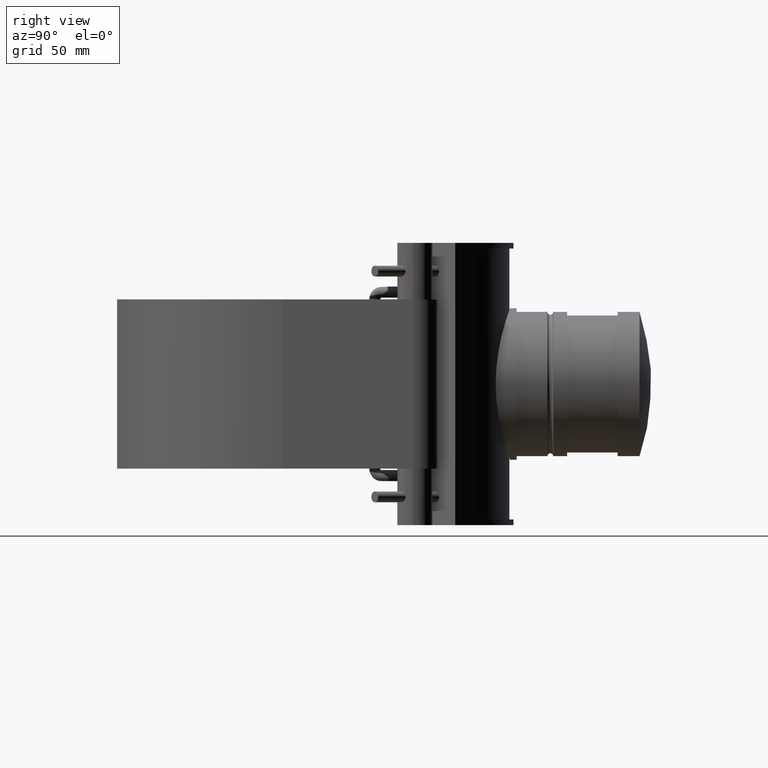
[diagram: clean part render]
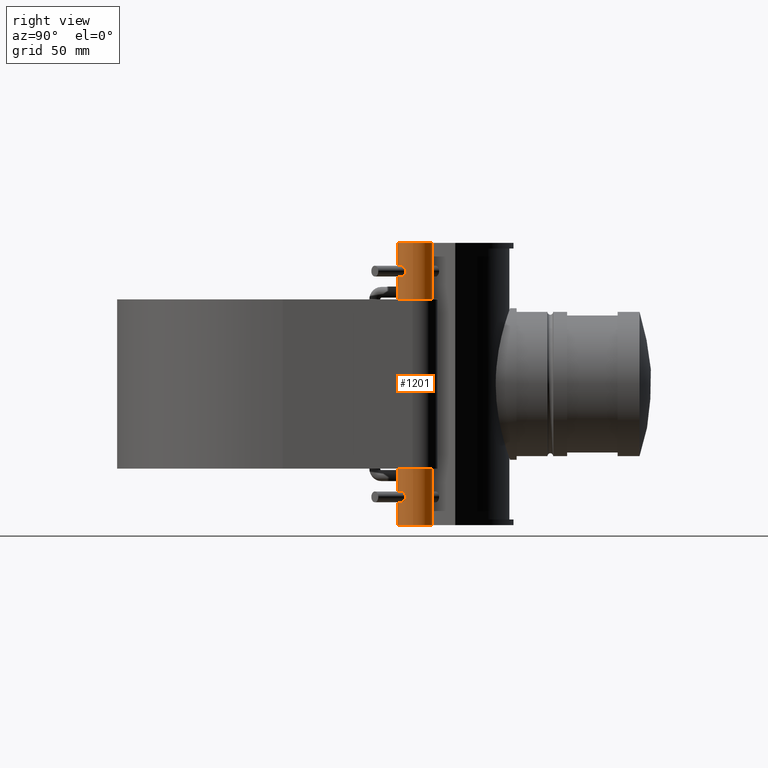
[diagram: same view with one face highlighted and labeled with its STEP entity id]
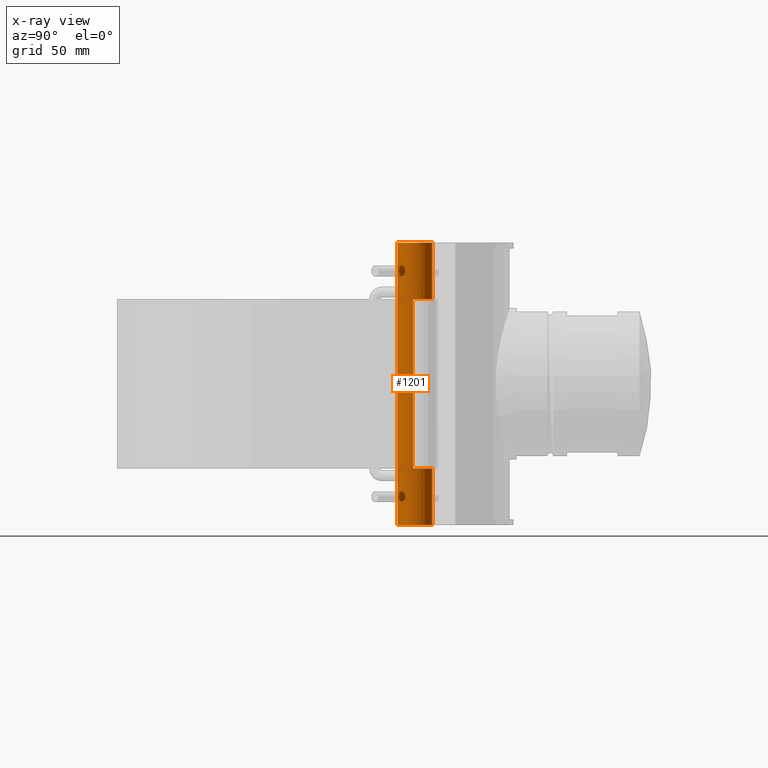
[diagram: x-ray of the same camera — body ghosted, the highlighted face saturated]
A machine part, right view. The second image highlights one B-rep face of the part: STEP entity #1201.
The next image is the same camera in x-ray: the body ghosted, the highlighted face saturated — about 0% of this face is hidden behind the body in this view.
In plain terms, the highlighted cylindrical surface (bore or boss wall) has radius 10.9038 mm, axis along (0, 0, 1).
Its self-contained STEP definition (entity closure, byte-faithful):
#96=LINE('',#2029,#199);
#101=LINE('',#2038,#204);
#199=VECTOR('',#1537,105.6);
#204=VECTOR('',#1544,105.6);
#288=FACE_BOUND('',#456,.T.);
#289=FACE_BOUND('',#457,.T.);
#290=FACE_BOUND('',#458,.T.);
#291=FACE_BOUND('',#459,.T.);
#292=FACE_BOUND('',#460,.T.);
#293=FACE_BOUND('',#461,.T.);
#303=B_SPLINE_CURVE_WITH_KNOTS('',3,(#1696,#1697,#1698,#1699,#1700,#1701,
#1702,#1703,#1704,#1705,#1706,#1707,#1708,#1709,#1710,#1711,#1712,#1713,
#1714,#1715,#1716,#1717,#1718,#1719,#1720,#1721,#1722,#1723,#1724,#1725,
#1726,#1727,#1728,#1729),.UNSPECIFIED.,.T.,.F.,(4,2,2,2,2,2,2,2,2,2,2,2,
2,2,2,2,4),(0.,0.128066673134918,0.256133346269836,0.384156535697469,0.512179725125103,
0.640202914552737,0.768226103980372,0.89629277711529,1.02435945025021,1.15242612338513,
1.28049279652004,1.40851598594768,1.53653917537531,1.66456236480295,1.79258555423058,
1.9206522273655,2.04871890050042),.UNSPECIFIED.);
#304=B_SPLINE_CURVE_WITH_KNOTS('',3,(#1734,#1735,#1736,#1737,#1738,#1739,
#1740,#1741,#1742,#1743,#1744,#1745,#1746,#1747,#1748,#1749,#1750,#1751,
#1752,#1753,#1754,#1755,#1756,#1757,#1758,#1759,#1760,#1761,#1762,#1763,
#1764,#1765,#1766,#1767),.UNSPECIFIED.,.T.,.F.,(4,2,2,2,2,2,2,2,2,2,2,2,
2,2,2,2,4),(0.,0.128066673134918,0.256133346269836,0.38415653569747,0.512179725125104,
0.640202914552738,0.768226103980373,0.896292777115291,1.02435945025021,
1.15242612338513,1.28049279652004,1.40851598594768,1.53653917537531,1.66456236480295,
1.79258555423058,1.9206522273655,2.04871890050042),.UNSPECIFIED.);
#305=B_SPLINE_CURVE_WITH_KNOTS('',3,(#1773,#1774,#1775,#1776,#1777,#1778,
#1779,#1780,#1781,#1782,#1783,#1784,#1785,#1786,#1787,#1788,#1789,#1790,
#1791,#1792,#1793,#1794,#1795,#1796,#1797,#1798,#1799,#1800,#1801,#1802,
#1803,#1804,#1805,#1806),.UNSPECIFIED.,.T.,.F.,(4,2,2,2,2,2,2,2,2,2,2,2,
2,2,2,2,4),(0.,0.128066673134918,0.256133346269836,0.38415653569747,0.512179725125105,
0.640202914552739,0.768226103980373,0.89629277711529,1.02435945025021,1.15242612338513,
1.28049279652004,1.40851598594768,1.53653917537531,1.66456236480295,1.79258555423058,
1.9206522273655,2.04871890050042),.UNSPECIFIED.);
#306=B_SPLINE_CURVE_WITH_KNOTS('',3,(#1811,#1812,#1813,#1814,#1815,#1816,
#1817,#1818,#1819,#1820,#1821,#1822,#1823,#1824,#1825,#1826,#1827,#1828,
#1829,#1830,#1831,#1832,#1833,#1834,#1835,#1836,#1837,#1838,#1839,#1840,
#1841,#1842,#1843,#1844),.UNSPECIFIED.,.T.,.F.,(4,2,2,2,2,2,2,2,2,2,2,2,
2,2,2,2,4),(0.,0.128066673134918,0.256133346269836,0.38415653569747,0.512179725125105,
0.640202914552739,0.768226103980373,0.89629277711529,1.02435945025021,1.15242612338513,
1.28049279652004,1.40851598594768,1.53653917537531,1.66456236480295,1.79258555423058,
1.9206522273655,2.04871890050042),.UNSPECIFIED.);
#367=FACE_OUTER_BOUND('',#455,.T.);
#455=EDGE_LOOP('',(#1086));
#456=EDGE_LOOP('',(#1087));
#457=EDGE_LOOP('',(#1088));
#458=EDGE_LOOP('',(#1089));
#459=EDGE_LOOP('',(#1090));
#460=EDGE_LOOP('',(#1091,#1092,#1093,#1094));
#461=EDGE_LOOP('',(#1095));
#509=CIRCLE('',#1286,10.9038461538461);
#516=CIRCLE('',#1294,10.9038461538461);
#521=CIRCLE('',#1316,10.9038461538461);
#522=CIRCLE('',#1318,10.9038461538461);
#533=VERTEX_POINT('',#1695);
#535=VERTEX_POINT('',#1733);
#537=VERTEX_POINT('',#1772);
#539=VERTEX_POINT('',#1810);
#596=VERTEX_POINT('',#2025);
#598=VERTEX_POINT('',#2028);
#600=VERTEX_POINT('',#2034);
#601=VERTEX_POINT('',#2036);
#628=VERTEX_POINT('',#2126);
#629=VERTEX_POINT('',#2129);
#641=EDGE_CURVE('',#533,#533,#303,.T.);
#643=EDGE_CURVE('',#535,#535,#304,.T.);
#645=EDGE_CURVE('',#537,#537,#305,.T.);
#647=EDGE_CURVE('',#539,#539,#306,.T.);
#739=EDGE_CURVE('',#598,#596,#96,.T.);
#744=EDGE_CURVE('',#601,#600,#101,.T.);
#757=EDGE_CURVE('',#596,#600,#509,.T.);
#770=EDGE_CURVE('',#601,#598,#516,.T.);
#787=EDGE_CURVE('',#628,#628,#521,.T.);
#788=EDGE_CURVE('',#629,#629,#522,.T.);
#1086=ORIENTED_EDGE('',*,*,#788,.F.);
#1087=ORIENTED_EDGE('',*,*,#643,.T.);
#1088=ORIENTED_EDGE('',*,*,#641,.T.);
#1089=ORIENTED_EDGE('',*,*,#647,.T.);
#1090=ORIENTED_EDGE('',*,*,#645,.T.);
#1091=ORIENTED_EDGE('',*,*,#757,.T.);
#1092=ORIENTED_EDGE('',*,*,#744,.F.);
#1093=ORIENTED_EDGE('',*,*,#770,.T.);
#1094=ORIENTED_EDGE('',*,*,#739,.T.);
#1095=ORIENTED_EDGE('',*,*,#787,.F.);
#1135=CYLINDRICAL_SURFACE('',#1317,10.9038461538461);
#1201=ADVANCED_FACE('',(#367,#288,#289,#290,#291,#292,#293),#1135,.T.);
#1286=AXIS2_PLACEMENT_3D('',#2064,#1565,#1566);
#1294=AXIS2_PLACEMENT_3D('',#2090,#1587,#1588);
#1316=AXIS2_PLACEMENT_3D('',#2127,#1643,#1644);
#1317=AXIS2_PLACEMENT_3D('',#2128,#1645,#1646);
#1318=AXIS2_PLACEMENT_3D('',#2130,#1647,#1648);
#1537=DIRECTION('',(0.,0.,-1.));
#1544=DIRECTION('',(0.,0.,-1.));
#1565=DIRECTION('center_axis',(0.,0.,-1.));
#1566=DIRECTION('ref_axis',(1.,0.,0.));
#1587=DIRECTION('center_axis',(0.,0.,1.));
#1588=DIRECTION('ref_axis',(1.,0.,0.));
#1643=DIRECTION('center_axis',(0.,0.,-1.));
#1644=DIRECTION('ref_axis',(1.,0.,0.));
#1645=DIRECTION('center_axis',(0.,0.,1.));
#1646=DIRECTION('ref_axis',(1.,0.,0.));
#1647=DIRECTION('center_axis',(0.,0.,1.));
#1648=DIRECTION('ref_axis',(1.,0.,0.));
#1695=CARTESIAN_POINT('',(105.647777550209,80.1120455583437,-70.4));
#1696=CARTESIAN_POINT('Ctrl Pts',(105.647777550209,80.1120455583437,-70.4));
#1697=CARTESIAN_POINT('Ctrl Pts',(105.647777550209,80.1120455583437,-69.9731110895503));
#1698=CARTESIAN_POINT('Ctrl Pts',(105.563259417524,80.0791483434038,-69.5198532719695));
#1699=CARTESIAN_POINT('Ctrl Pts',(105.232583122042,79.9361036115303,-68.6892539677133));
#1700=CARTESIAN_POINT('Ctrl Pts',(104.987633948385,79.8247253703594,-68.3116440323042));
#1701=CARTESIAN_POINT('Ctrl Pts',(104.444996555548,79.5439588329499,-67.715486421431));
#1702=CARTESIAN_POINT('Ctrl Pts',(104.110324578548,79.3552849434751,-67.4561736514262));
#1703=CARTESIAN_POINT('Ctrl Pts',(103.410040225209,78.897435587302,-67.1108555934634));
#1704=CARTESIAN_POINT('Ctrl Pts',(103.045089284384,78.6271364878335,-67.025));
#1705=CARTESIAN_POINT('Ctrl Pts',(102.391279598708,78.0785250217226,-67.025));
#1706=CARTESIAN_POINT('Ctrl Pts',(102.061713884107,77.7660554517774,-67.1108555934634));
#1707=CARTESIAN_POINT('Ctrl Pts',(101.48921718663,77.1559146976408,-67.4561736514262));
#1708=CARTESIAN_POINT('Ctrl Pts',(101.245294498562,76.8590900170563,-67.7154864214309));
#1709=CARTESIAN_POINT('Ctrl Pts',(100.874565441335,76.3734511030864,-68.3116440323042));
#1710=CARTESIAN_POINT('Ctrl Pts',(100.722344308286,76.1515638863864,-68.6892539677133));
#1711=CARTESIAN_POINT('Ctrl Pts',(100.524051411202,75.8507507638729,-69.5198532719695));
#1712=CARTESIAN_POINT('Ctrl Pts',(100.476977559156,75.7732291929595,-69.9731110895503));
#1713=CARTESIAN_POINT('Ctrl Pts',(100.476977559156,75.7732291929595,-70.8268889104497));
#1714=CARTESIAN_POINT('Ctrl Pts',(100.524051411202,75.8507507638729,-71.2801467280305));
#1715=CARTESIAN_POINT('Ctrl Pts',(100.722344308286,76.1515638863864,-72.1107460322867));
#1716=CARTESIAN_POINT('Ctrl Pts',(100.874565441335,76.3734511030864,-72.4883559676958));
#1717=CARTESIAN_POINT('Ctrl Pts',(101.245294498562,76.8590900170563,-73.0845135785691));
#1718=CARTESIAN_POINT('Ctrl Pts',(101.48921718663,77.1559146976408,-73.3438263485738));
#1719=CARTESIAN_POINT('Ctrl Pts',(102.061713884107,77.7660554517774,-73.6891444065366));
#1720=CARTESIAN_POINT('Ctrl Pts',(102.391279598708,78.0785250217226,-73.775));
#1721=CARTESIAN_POINT('Ctrl Pts',(103.045089284384,78.6271364878335,-73.775));
#1722=CARTESIAN_POINT('Ctrl Pts',(103.410040225209,78.897435587302,-73.6891444065366));
#1723=CARTESIAN_POINT('Ctrl Pts',(104.110324578548,79.3552849434751,-73.3438263485738));
#1724=CARTESIAN_POINT('Ctrl Pts',(104.444996555548,79.5439588329499,-73.0845135785691));
#1725=CARTESIAN_POINT('Ctrl Pts',(104.987633948385,79.8247253703594,-72.4883559676958));
#1726=CARTESIAN_POINT('Ctrl Pts',(105.232583122042,79.9361036115303,-72.1107460322867));
#1727=CARTESIAN_POINT('Ctrl Pts',(105.563259417524,80.0791483434038,-71.2801467280306));
#1728=CARTESIAN_POINT('Ctrl Pts',(105.647777550209,80.1120455583437,-70.8268889104497));
#1729=CARTESIAN_POINT('Ctrl Pts',(105.647777550209,80.1120455583437,-70.4));
#1733=CARTESIAN_POINT('',(118.977105735177,64.2267708070405,-70.4));
#1734=CARTESIAN_POINT('Ctrl Pts',(118.977105735177,64.2267708070405,-70.4));
#1735=CARTESIAN_POINT('Ctrl Pts',(118.977105735177,64.2267708070405,-70.8268889104497));
#1736=CARTESIAN_POINT('Ctrl Pts',(118.930031883132,64.1492492361271,-71.2801467280306));
#1737=CARTESIAN_POINT('Ctrl Pts',(118.731738986047,63.8484361136136,-72.1107460322867));
#1738=CARTESIAN_POINT('Ctrl Pts',(118.579517852998,63.6265488969136,-72.4883559676958));
#1739=CARTESIAN_POINT('Ctrl Pts',(118.208788795771,63.1409099829437,-73.0845135785691));
#1740=CARTESIAN_POINT('Ctrl Pts',(117.964866107703,62.8440853023592,-73.3438263485738));
#1741=CARTESIAN_POINT('Ctrl Pts',(117.392369410226,62.2339445482227,-73.6891444065366));
#1742=CARTESIAN_POINT('Ctrl Pts',(117.062803695625,61.9214749782774,-73.775));
#1743=CARTESIAN_POINT('Ctrl Pts',(116.408994009949,61.3728635121665,-73.775));
#1744=CARTESIAN_POINT('Ctrl Pts',(116.044043069125,61.1025644126979,-73.6891444065366));
#1745=CARTESIAN_POINT('Ctrl Pts',(115.343758715785,60.644715056525,-73.3438263485738));
#1746=CARTESIAN_POINT('Ctrl Pts',(115.009086738786,60.4560411670501,-73.0845135785691));
#1747=CARTESIAN_POINT('Ctrl Pts',(114.466449345948,60.1752746296406,-72.4883559676958));
#1748=CARTESIAN_POINT('Ctrl Pts',(114.221500172291,60.0638963884697,-72.1107460322867));
#1749=CARTESIAN_POINT('Ctrl Pts',(113.890823876809,59.9208516565962,-71.2801467280305));
#1750=CARTESIAN_POINT('Ctrl Pts',(113.806305744124,59.8879544416563,-70.8268889104497));
#1751=CARTESIAN_POINT('Ctrl Pts',(113.806305744124,59.8879544416563,-69.9731110895503));
#1752=CARTESIAN_POINT('Ctrl Pts',(113.890823876809,59.9208516565962,-69.5198532719695));
#1753=CARTESIAN_POINT('Ctrl Pts',(114.221500172291,60.0638963884697,-68.6892539677133));
#1754=CARTESIAN_POINT('Ctrl Pts',(114.466449345948,60.1752746296406,-68.3116440323042));
#1755=CARTESIAN_POINT('Ctrl Pts',(115.009086738786,60.4560411670501,-67.7154864214309));
#1756=CARTESIAN_POINT('Ctrl Pts',(115.343758715785,60.644715056525,-67.4561736514262));
#1757=CARTESIAN_POINT('Ctrl Pts',(116.044043069125,61.1025644126979,-67.1108555934634));
#1758=CARTESIAN_POINT('Ctrl Pts',(116.408994009949,61.3728635121665,-67.025));
#1759=CARTESIAN_POINT('Ctrl Pts',(117.062803695625,61.9214749782774,-67.025));
#1760=CARTESIAN_POINT('Ctrl Pts',(117.392369410226,62.2339445482227,-67.1108555934634));
#1761=CARTESIAN_POINT('Ctrl Pts',(117.964866107703,62.8440853023592,-67.4561736514262));
#1762=CARTESIAN_POINT('Ctrl Pts',(118.208788795771,63.1409099829437,-67.7154864214309));
#1763=CARTESIAN_POINT('Ctrl Pts',(118.579517852998,63.6265488969136,-68.3116440323042));
#1764=CARTESIAN_POINT('Ctrl Pts',(118.731738986047,63.8484361136136,-68.6892539677133));
#1765=CARTESIAN_POINT('Ctrl Pts',(118.930031883132,64.1492492361271,-69.5198532719695));
#1766=CARTESIAN_POINT('Ctrl Pts',(118.977105735177,64.2267708070405,-69.9731110895503));
#1767=CARTESIAN_POINT('Ctrl Pts',(118.977105735177,64.2267708070405,-70.4));
#1772=CARTESIAN_POINT('',(113.806305744124,59.8879544416563,70.4));
#1773=CARTESIAN_POINT('Ctrl Pts',(113.806305744124,59.8879544416563,70.4));
#1774=CARTESIAN_POINT('Ctrl Pts',(113.806305744124,59.8879544416563,70.8268889104497));
#1775=CARTESIAN_POINT('Ctrl Pts',(113.890823876809,59.9208516565962,71.2801467280305));
#1776=CARTESIAN_POINT('Ctrl Pts',(114.221500172291,60.0638963884697,72.1107460322867));
#1777=CARTESIAN_POINT('Ctrl Pts',(114.466449345948,60.1752746296406,72.4883559676958));
#1778=CARTESIAN_POINT('Ctrl Pts',(115.009086738786,60.4560411670501,73.0845135785691));
#1779=CARTESIAN_POINT('Ctrl Pts',(115.343758715785,60.644715056525,73.3438263485738));
#1780=CARTESIAN_POINT('Ctrl Pts',(116.044043069125,61.1025644126979,73.6891444065366));
#1781=CARTESIAN_POINT('Ctrl Pts',(116.408994009949,61.3728635121665,73.775));
#1782=CARTESIAN_POINT('Ctrl Pts',(117.062803695625,61.9214749782774,73.775));
#1783=CARTESIAN_POINT('Ctrl Pts',(117.392369410226,62.2339445482227,73.6891444065366));
#1784=CARTESIAN_POINT('Ctrl Pts',(117.964866107703,62.8440853023592,73.3438263485738));
#1785=CARTESIAN_POINT('Ctrl Pts',(118.208788795771,63.1409099829437,73.0845135785691));
#1786=CARTESIAN_POINT('Ctrl Pts',(118.579517852998,63.6265488969136,72.4883559676958));
#1787=CARTESIAN_POINT('Ctrl Pts',(118.731738986047,63.8484361136136,72.1107460322867));
#1788=CARTESIAN_POINT('Ctrl Pts',(118.930031883132,64.1492492361271,71.2801467280306));
#1789=CARTESIAN_POINT('Ctrl Pts',(118.977105735177,64.2267708070405,70.8268889104497));
#1790=CARTESIAN_POINT('Ctrl Pts',(118.977105735177,64.2267708070405,69.9731110895503));
#1791=CARTESIAN_POINT('Ctrl Pts',(118.930031883132,64.1492492361271,69.5198532719695));
#1792=CARTESIAN_POINT('Ctrl Pts',(118.731738986047,63.8484361136136,68.6892539677133));
#1793=CARTESIAN_POINT('Ctrl Pts',(118.579517852998,63.6265488969136,68.3116440323042));
#1794=CARTESIAN_POINT('Ctrl Pts',(118.208788795771,63.1409099829437,67.7154864214309));
#1795=CARTESIAN_POINT('Ctrl Pts',(117.964866107703,62.8440853023592,67.4561736514262));
#1796=CARTESIAN_POINT('Ctrl Pts',(117.392369410226,62.2339445482227,67.1108555934634));
#1797=CARTESIAN_POINT('Ctrl Pts',(117.062803695625,61.9214749782774,67.025));
#1798=CARTESIAN_POINT('Ctrl Pts',(116.408994009949,61.3728635121665,67.025));
#1799=CARTESIAN_POINT('Ctrl Pts',(116.044043069125,61.1025644126979,67.1108555934634));
#1800=CARTESIAN_POINT('Ctrl Pts',(115.343758715785,60.644715056525,67.4561736514262));
#1801=CARTESIAN_POINT('Ctrl Pts',(115.009086738786,60.4560411670501,67.7154864214309));
#1802=CARTESIAN_POINT('Ctrl Pts',(114.466449345948,60.1752746296406,68.3116440323042));
#1803=CARTESIAN_POINT('Ctrl Pts',(114.221500172291,60.0638963884697,68.6892539677133));
#1804=CARTESIAN_POINT('Ctrl Pts',(113.890823876809,59.9208516565962,69.5198532719695));
#1805=CARTESIAN_POINT('Ctrl Pts',(113.806305744124,59.8879544416563,69.9731110895503));
#1806=CARTESIAN_POINT('Ctrl Pts',(113.806305744124,59.8879544416563,70.4));
#1810=CARTESIAN_POINT('',(100.476977559156,75.7732291929595,70.4));
#1811=CARTESIAN_POINT('Ctrl Pts',(100.476977559156,75.7732291929595,70.4));
#1812=CARTESIAN_POINT('Ctrl Pts',(100.476977559156,75.7732291929595,69.9731110895503));
#1813=CARTESIAN_POINT('Ctrl Pts',(100.524051411202,75.8507507638729,69.5198532719695));
#1814=CARTESIAN_POINT('Ctrl Pts',(100.722344308286,76.1515638863864,68.6892539677133));
#1815=CARTESIAN_POINT('Ctrl Pts',(100.874565441335,76.3734511030864,68.3116440323042));
#1816=CARTESIAN_POINT('Ctrl Pts',(101.245294498562,76.8590900170563,67.7154864214309));
#1817=CARTESIAN_POINT('Ctrl Pts',(101.48921718663,77.1559146976408,67.4561736514262));
#1818=CARTESIAN_POINT('Ctrl Pts',(102.061713884107,77.7660554517774,67.1108555934634));
#1819=CARTESIAN_POINT('Ctrl Pts',(102.391279598708,78.0785250217226,67.025));
#1820=CARTESIAN_POINT('Ctrl Pts',(103.045089284384,78.6271364878335,67.025));
#1821=CARTESIAN_POINT('Ctrl Pts',(103.410040225209,78.897435587302,67.1108555934634));
#1822=CARTESIAN_POINT('Ctrl Pts',(104.110324578548,79.3552849434751,67.4561736514262));
#1823=CARTESIAN_POINT('Ctrl Pts',(104.444996555548,79.5439588329499,67.715486421431));
#1824=CARTESIAN_POINT('Ctrl Pts',(104.987633948385,79.8247253703594,68.3116440323042));
#1825=CARTESIAN_POINT('Ctrl Pts',(105.232583122042,79.9361036115303,68.6892539677133));
#1826=CARTESIAN_POINT('Ctrl Pts',(105.563259417524,80.0791483434038,69.5198532719695));
#1827=CARTESIAN_POINT('Ctrl Pts',(105.647777550209,80.1120455583437,69.9731110895503));
#1828=CARTESIAN_POINT('Ctrl Pts',(105.647777550209,80.1120455583437,70.8268889104497));
#1829=CARTESIAN_POINT('Ctrl Pts',(105.563259417524,80.0791483434038,71.2801467280305));
#1830=CARTESIAN_POINT('Ctrl Pts',(105.232583122042,79.9361036115303,72.1107460322867));
#1831=CARTESIAN_POINT('Ctrl Pts',(104.987633948385,79.8247253703594,72.4883559676958));
#1832=CARTESIAN_POINT('Ctrl Pts',(104.444996555548,79.5439588329499,73.084513578569));
#1833=CARTESIAN_POINT('Ctrl Pts',(104.110324578548,79.3552849434751,73.3438263485738));
#1834=CARTESIAN_POINT('Ctrl Pts',(103.410040225209,78.897435587302,73.6891444065366));
#1835=CARTESIAN_POINT('Ctrl Pts',(103.045089284384,78.6271364878335,73.775));
#1836=CARTESIAN_POINT('Ctrl Pts',(102.391279598708,78.0785250217226,73.775));
#1837=CARTESIAN_POINT('Ctrl Pts',(102.061713884107,77.7660554517774,73.6891444065366));
#1838=CARTESIAN_POINT('Ctrl Pts',(101.48921718663,77.1559146976408,73.3438263485738));
#1839=CARTESIAN_POINT('Ctrl Pts',(101.245294498562,76.8590900170563,73.0845135785691));
#1840=CARTESIAN_POINT('Ctrl Pts',(100.874565441335,76.3734511030864,72.4883559676958));
#1841=CARTESIAN_POINT('Ctrl Pts',(100.722344308286,76.1515638863864,72.1107460322867));
#1842=CARTESIAN_POINT('Ctrl Pts',(100.524051411202,75.8507507638729,71.2801467280305));
#1843=CARTESIAN_POINT('Ctrl Pts',(100.476977559156,75.7732291929595,70.8268889104497));
#1844=CARTESIAN_POINT('Ctrl Pts',(100.476977559156,75.7732291929595,70.4));
#2025=CARTESIAN_POINT('',(99.3971767792654,66.5089037885438,-52.8));
#2028=CARTESIAN_POINT('',(99.3971767792654,66.5089037885438,52.8));
#2029=CARTESIAN_POINT('',(99.3971767792654,66.5089037885438,52.8));
#2034=CARTESIAN_POINT('',(120.568131936144,68.831829510309,-52.8));
#2036=CARTESIAN_POINT('',(120.568131936144,68.831829510309,52.8));
#2038=CARTESIAN_POINT('',(120.568131936144,68.831829510309,52.8));
#2064=CARTESIAN_POINT('Origin',(109.727041647167,70.,-52.8));
#2090=CARTESIAN_POINT('Origin',(109.727041647167,70.,52.8));
#2126=CARTESIAN_POINT('',(99.446039665954,66.3675271220494,-88.));
#2127=CARTESIAN_POINT('Origin',(109.727041647167,70.,-88.));
#2128=CARTESIAN_POINT('Origin',(109.727041647167,70.,0.));
#2129=CARTESIAN_POINT('',(120.568131936144,68.831829510309,88.));
#2130=CARTESIAN_POINT('Origin',(109.727041647167,70.,88.));